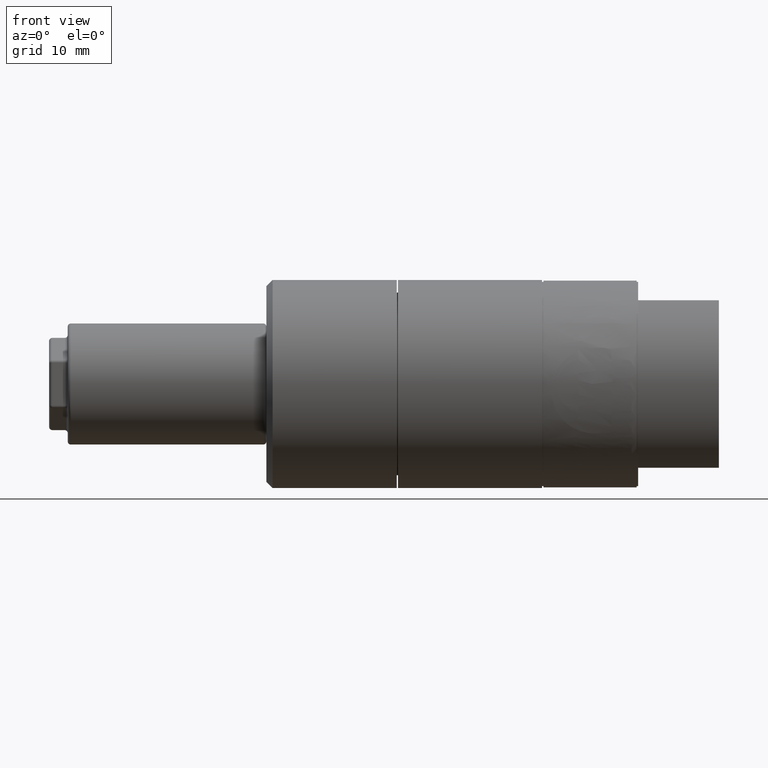
[diagram: clean part render]
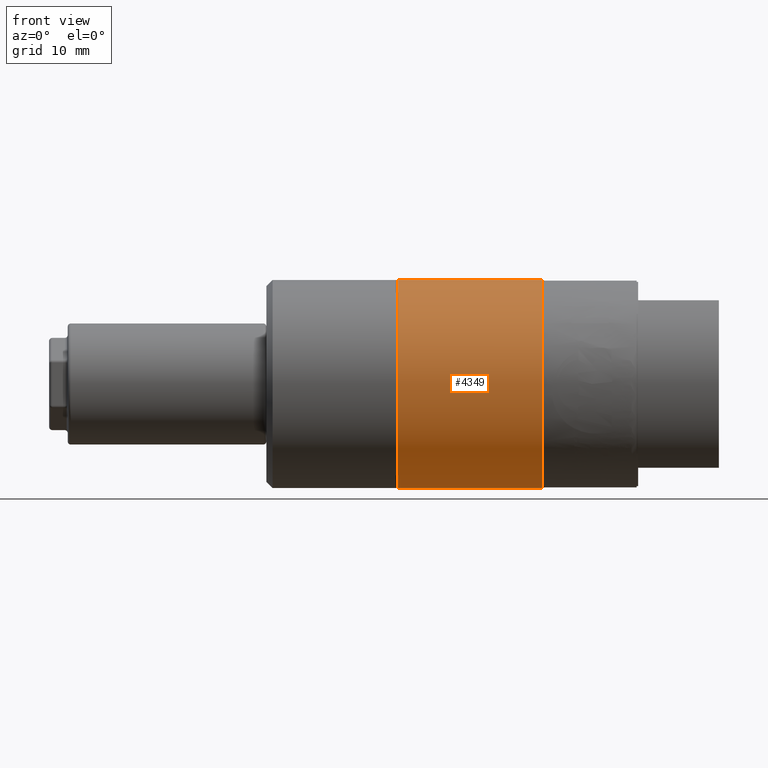
[diagram: same view with one face highlighted and labeled with its STEP entity id]
A machine part, front view. The second image highlights one B-rep face of the part: STEP entity #4349.
In plain terms, the highlighted cylindrical surface (partial cylindrical patch) has radius 16.75 mm, axis along (1, 0, 0).
Its self-contained STEP definition (entity closure, byte-faithful):
#488 = DIRECTION ( 'NONE',  ( 0.0000000000000000000, 0.0000000000000000000, -1.000000000000000000 ) ) ;
#780 = ORIENTED_EDGE ( 'NONE', *, *, #841, .F. ) ;
#841 = EDGE_CURVE ( 'NONE', #13401, #9988, #10549, .T. ) ;
#1794 = AXIS2_PLACEMENT_3D ( 'NONE', #16221, #11830, #4534 ) ;
#2531 = EDGE_CURVE ( 'NONE', #9988, #15305, #3027, .T. ) ;
#3027 = CIRCLE ( 'NONE', #18452, 16.75000000000000000 ) ;
#3427 = LINE ( 'NONE', #18700, #10682 ) ;
#3632 = EDGE_CURVE ( 'NONE', #18500, #15305, #3427, .T. ) ;
#3719 = DIRECTION ( 'NONE',  ( 1.000000000000000000, 0.0000000000000000000, 0.0000000000000000000 ) ) ;
#4207 = CYLINDRICAL_SURFACE ( 'NONE', #12136, 16.75000000000000000 ) ;
#4289 = DIRECTION ( 'NONE',  ( 1.000000000000000000, 0.0000000000000000000, 0.0000000000000000000 ) ) ;
#4349 = ADVANCED_FACE ( 'NONE', ( #6676 ), #4207, .T. ) ;
#4534 = DIRECTION ( 'NONE',  ( 0.0000000000000000000, 0.0000000000000000000, -1.000000000000000000 ) ) ;
#4736 = CARTESIAN_POINT ( 'NONE',  ( -28.50000000000000000, 0.0000000000000000000, 0.0000000000000000000 ) ) ;
#6676 = FACE_OUTER_BOUND ( 'NONE', #9095, .T. ) ;
#6868 = CARTESIAN_POINT ( 'NONE',  ( 0.0000000000000000000, 0.0000000000000000000, 0.0000000000000000000 ) ) ;
#7737 = ORIENTED_EDGE ( 'NONE', *, *, #3632, .T. ) ;
#7842 = CARTESIAN_POINT ( 'NONE',  ( -51.70000000000000300, 2.051283388571816900E-015, 16.75000000000000000 ) ) ;
#8071 = CARTESIAN_POINT ( 'NONE',  ( -51.70000000000000300, 0.0000000000000000000, -16.75000000000000000 ) ) ;
#8291 = VECTOR ( 'NONE', #3719, 1000.000000000000000 ) ;
#9095 = EDGE_LOOP ( 'NONE', ( #780, #15112, #7737, #9102 ) ) ;
#9102 = ORIENTED_EDGE ( 'NONE', *, *, #2531, .F. ) ;
#9134 = DIRECTION ( 'NONE',  ( 1.000000000000000000, 0.0000000000000000000, 0.0000000000000000000 ) ) ;
#9988 = VERTEX_POINT ( 'NONE', #13377 ) ;
#10293 = CIRCLE ( 'NONE', #1794, 16.75000000000000000 ) ;
#10549 = LINE ( 'NONE', #10951, #8291 ) ;
#10682 = VECTOR ( 'NONE', #4289, 1000.000000000000000 ) ;
#10821 = CARTESIAN_POINT ( 'NONE',  ( -28.50000000000000000, 0.0000000000000000000, -16.75000000000000000 ) ) ;
#10951 = CARTESIAN_POINT ( 'NONE',  ( 0.0000000000000000000, 2.051283388571816900E-015, 16.75000000000000000 ) ) ;
#11830 = DIRECTION ( 'NONE',  ( 1.000000000000000000, 0.0000000000000000000, 0.0000000000000000000 ) ) ;
#12095 = EDGE_CURVE ( 'NONE', #13401, #18500, #10293, .T. ) ;
#12136 = AXIS2_PLACEMENT_3D ( 'NONE', #6868, #16974, #15771 ) ;
#13377 = CARTESIAN_POINT ( 'NONE',  ( -28.50000000000000000, 2.051283388571816900E-015, 16.75000000000000000 ) ) ;
#13401 = VERTEX_POINT ( 'NONE', #7842 ) ;
#15112 = ORIENTED_EDGE ( 'NONE', *, *, #12095, .T. ) ;
#15305 = VERTEX_POINT ( 'NONE', #10821 ) ;
#15771 = DIRECTION ( 'NONE',  ( 0.0000000000000000000, 0.0000000000000000000, -1.000000000000000000 ) ) ;
#16221 = CARTESIAN_POINT ( 'NONE',  ( -51.70000000000000300, 0.0000000000000000000, 0.0000000000000000000 ) ) ;
#16974 = DIRECTION ( 'NONE',  ( 1.000000000000000000, 0.0000000000000000000, 0.0000000000000000000 ) ) ;
#18452 = AXIS2_PLACEMENT_3D ( 'NONE', #4736, #9134, #488 ) ;
#18500 = VERTEX_POINT ( 'NONE', #8071 ) ;
#18700 = CARTESIAN_POINT ( 'NONE',  ( 0.0000000000000000000, 0.0000000000000000000, -16.75000000000000000 ) ) ;